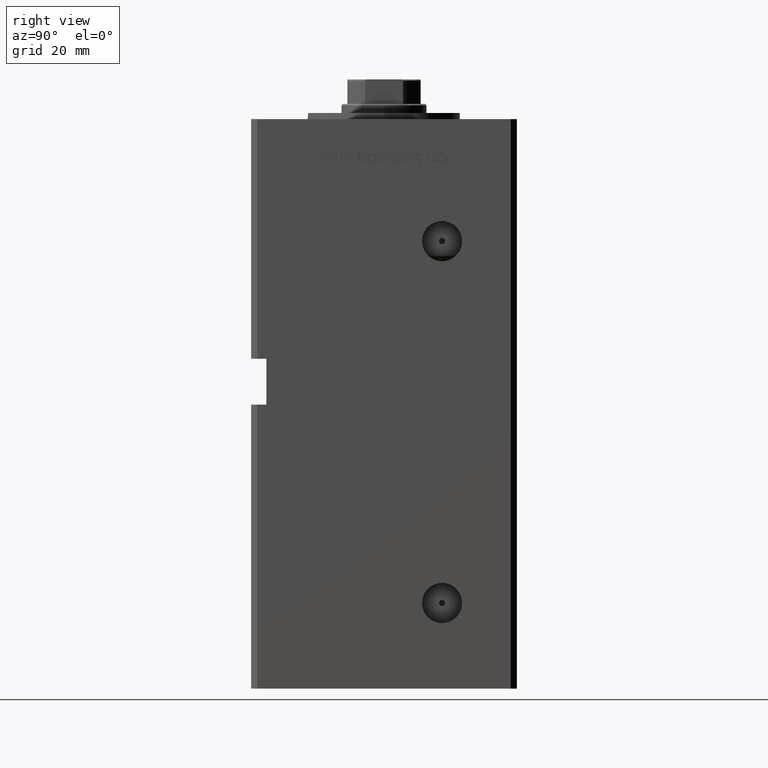
[diagram: clean part render]
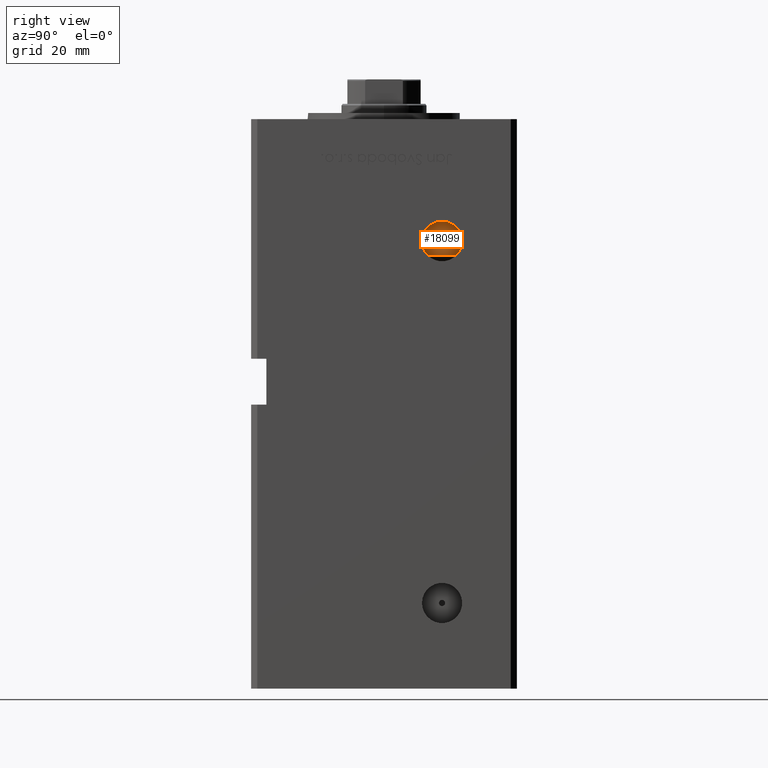
[diagram: same view with one face highlighted and labeled with its STEP entity id]
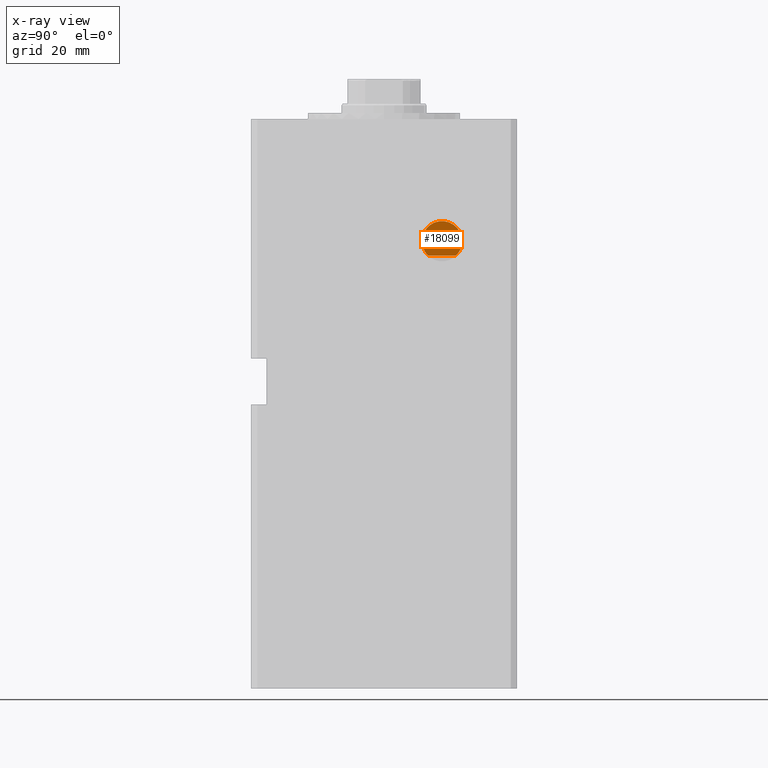
[diagram: x-ray of the same camera — body ghosted, the highlighted face saturated]
A machine part, right view. The second image highlights one B-rep face of the part: STEP entity #18099.
The next image is the same camera in x-ray: the body ghosted, the highlighted face saturated — about 0% of this face is hidden behind the body in this view.
In plain terms, the highlighted planar face has unit normal (1, -0, 0).
Its self-contained STEP definition (entity closure, byte-faithful):
#1215 = VERTEX_POINT ( 'NONE', #45874 ) ;
#1260 = CIRCLE ( 'NONE', #31327, 0.9999999999999974465 ) ;
#1849 = CARTESIAN_POINT ( 'NONE',  ( 37.00000000000001421, 14.46753999045239247, 122.7299678971885584 ) ) ;
#2568 = AXIS2_PLACEMENT_3D ( 'NONE', #33474, #49856, #13032 ) ;
#2743 = FACE_OUTER_BOUND ( 'NONE', #18660, .T. ) ;
#3630 = EDGE_CURVE ( 'NONE', #16225, #9986, #1260, .T. ) ;
#4034 = CARTESIAN_POINT ( 'NONE',  ( 37.00000000000001421, 18.99999999999999289, 127.5000000000000000 ) ) ;
#4305 = EDGE_CURVE ( 'NONE', #1215, #34086, #36517, .T. ) ;
#4403 = DIRECTION ( 'NONE',  ( 0.000000000000000000, 1.000000000000000000, 0.000000000000000000 ) ) ;
#4655 = CARTESIAN_POINT ( 'NONE',  ( 37.00000000000001421, 18.99999999999999289, 127.5000000000000000 ) ) ;
#5535 = DIRECTION ( 'NONE',  ( 1.000000000000000000, -2.275047181608927644E-16, 0.000000000000000000 ) ) ;
#7068 = ORIENTED_EDGE ( 'NONE', *, *, #3630, .F. ) ;
#8086 = DIRECTION ( 'NONE',  ( 0.000000000000000000, 1.000000000000000000, 0.000000000000000000 ) ) ;
#9986 = VERTEX_POINT ( 'NONE', #27287 ) ;
#10072 = VECTOR ( 'NONE', #48185, 1000.000000000000000 ) ;
#10097 = CARTESIAN_POINT ( 'NONE',  ( 37.00000000000001421, 23.53246000954759509, 122.7299678971885584 ) ) ;
#11096 = DIRECTION ( 'NONE',  ( 1.000000000000000000, -2.275047181608927644E-16, 0.000000000000000000 ) ) ;
#11152 = ORIENTED_EDGE ( 'NONE', *, *, #4305, .T. ) ;
#11338 = CARTESIAN_POINT ( 'NONE',  ( 37.00000000000001421, 19.99999999999998934, 127.5000000000000000 ) ) ;
#11896 = FACE_BOUND ( 'NONE', #12667, .T. ) ;
#12667 = EDGE_LOOP ( 'NONE', ( #7068, #30559 ) ) ;
#13032 = DIRECTION ( 'NONE',  ( 0.000000000000000000, 1.000000000000000000, 0.000000000000000000 ) ) ;
#13950 = EDGE_CURVE ( 'NONE', #16741, #26510, #44406, .T. ) ;
#16225 = VERTEX_POINT ( 'NONE', #11338 ) ;
#16741 = VERTEX_POINT ( 'NONE', #10097 ) ;
#17047 = AXIS2_PLACEMENT_3D ( 'NONE', #28295, #11096, #40645 ) ;
#17941 = EDGE_CURVE ( 'NONE', #34086, #26510, #20502, .T. ) ;
#18099 = ADVANCED_FACE ( 'NONE', ( #2743, #11896 ), #39580, .T. ) ;
#18660 = EDGE_LOOP ( 'NONE', ( #32469, #36585, #11152, #52342 ) ) ;
#20449 = DIRECTION ( 'NONE',  ( 1.000000000000000000, -2.275047181608927644E-16, 0.000000000000000000 ) ) ;
#20502 = CIRCLE ( 'NONE', #44513, 6.580000000000002736 ) ;
#21105 = EDGE_CURVE ( 'NONE', #9986, #16225, #50659, .T. ) ;
#24848 = DIRECTION ( 'NONE',  ( 1.000000000000000000, -2.275047181608927644E-16, 0.000000000000000000 ) ) ;
#25226 = CARTESIAN_POINT ( 'NONE',  ( 37.00000000000001421, 12.41999999999998927, 127.5000000000000000 ) ) ;
#25460 = DIRECTION ( 'NONE',  ( 0.000000000000000000, 1.000000000000000000, 0.000000000000000000 ) ) ;
#25993 = CARTESIAN_POINT ( 'NONE',  ( 37.00000000000001421, 18.99999999999999289, 127.5000000000000000 ) ) ;
#26198 = AXIS2_PLACEMENT_3D ( 'NONE', #37834, #33803, #25460 ) ;
#26510 = VERTEX_POINT ( 'NONE', #1849 ) ;
#27287 = CARTESIAN_POINT ( 'NONE',  ( 37.00000000000001421, 17.99999999999999645, 127.5000000000000000 ) ) ;
#28295 = CARTESIAN_POINT ( 'NONE',  ( 37.00000000000001421, 18.99999999999999289, 127.5000000000000000 ) ) ;
#30559 = ORIENTED_EDGE ( 'NONE', *, *, #21105, .F. ) ;
#31327 = AXIS2_PLACEMENT_3D ( 'NONE', #25993, #5535, #34322 ) ;
#32469 = ORIENTED_EDGE ( 'NONE', *, *, #13950, .F. ) ;
#33474 = CARTESIAN_POINT ( 'NONE',  ( 37.00000000000001421, 18.99999999999999289, 127.5000000000000000 ) ) ;
#33803 = DIRECTION ( 'NONE',  ( 1.000000000000000000, -2.275047181608927644E-16, 0.000000000000000000 ) ) ;
#34086 = VERTEX_POINT ( 'NONE', #25226 ) ;
#34322 = DIRECTION ( 'NONE',  ( 0.000000000000000000, 1.000000000000000000, 0.000000000000000000 ) ) ;
#36078 = AXIS2_PLACEMENT_3D ( 'NONE', #4034, #20449, #8086 ) ;
#36355 = CARTESIAN_POINT ( 'NONE',  ( 36.99999999999999289, -85.50000000000001421, 122.7299678971885584 ) ) ;
#36517 = CIRCLE ( 'NONE', #26198, 6.580000000000002736 ) ;
#36585 = ORIENTED_EDGE ( 'NONE', *, *, #50335, .T. ) ;
#37834 = CARTESIAN_POINT ( 'NONE',  ( 37.00000000000001421, 18.99999999999999289, 127.5000000000000000 ) ) ;
#39580 = PLANE ( 'NONE',  #17047 ) ;
#40645 = DIRECTION ( 'NONE',  ( 2.275047181608927644E-16, 1.000000000000000000, 0.000000000000000000 ) ) ;
#44406 = LINE ( 'NONE', #36355, #10072 ) ;
#44513 = AXIS2_PLACEMENT_3D ( 'NONE', #4655, #24848, #4403 ) ;
#45874 = CARTESIAN_POINT ( 'NONE',  ( 37.00000000000001421, 25.57999999999999474, 127.5000000000000000 ) ) ;
#46343 = CIRCLE ( 'NONE', #2568, 6.580000000000002736 ) ;
#48185 = DIRECTION ( 'NONE',  ( 0.000000000000000000, -1.000000000000000000, 0.000000000000000000 ) ) ;
#49856 = DIRECTION ( 'NONE',  ( 1.000000000000000000, -2.275047181608927644E-16, 0.000000000000000000 ) ) ;
#50335 = EDGE_CURVE ( 'NONE', #16741, #1215, #46343, .T. ) ;
#50659 = CIRCLE ( 'NONE', #36078, 0.9999999999999974465 ) ;
#52342 = ORIENTED_EDGE ( 'NONE', *, *, #17941, .T. ) ;